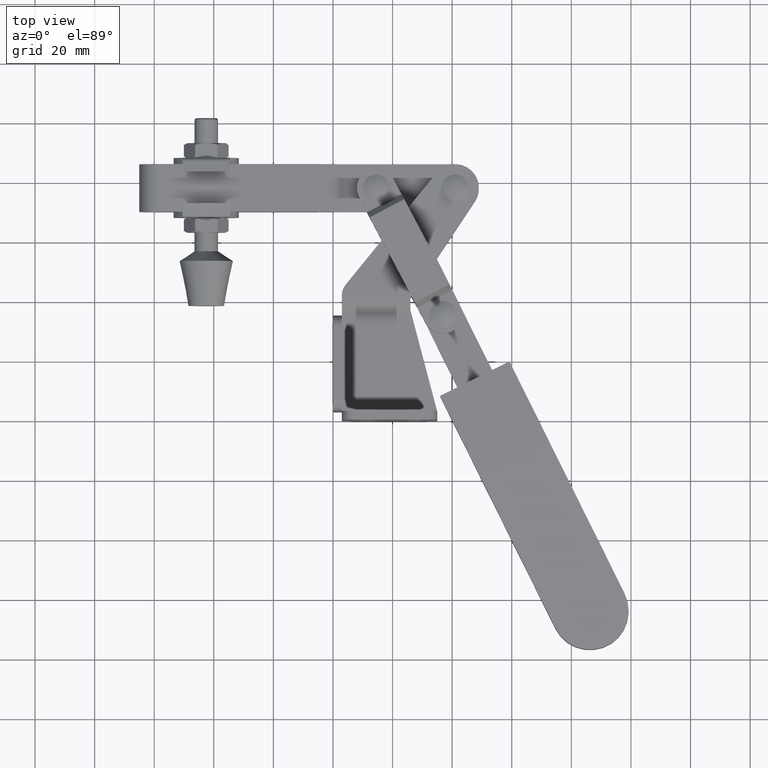
[diagram: clean part render]
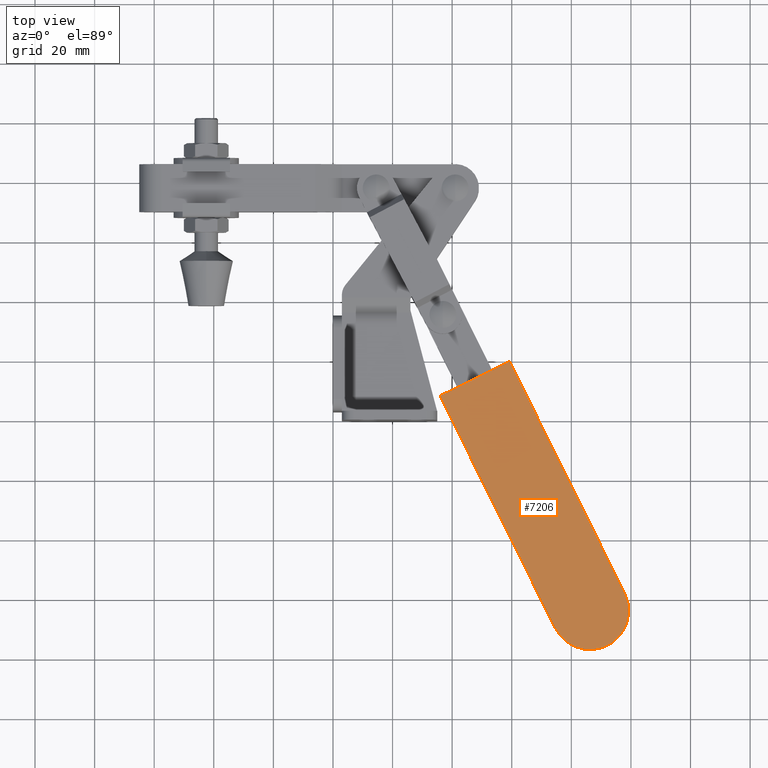
[diagram: same view with one face highlighted and labeled with its STEP entity id]
A machine part, top view. The second image highlights one B-rep face of the part: STEP entity #7206.
In plain terms, the highlighted planar face has unit normal (0, 0, -1).
Its self-contained STEP definition (entity closure, byte-faithful):
#92 = DIRECTION ( 'NONE',  ( -0.4443202440532905100, 0.8958680263992148100, 3.404298200502128600E-015 ) ) ;
#116 = ORIENTED_EDGE ( 'NONE', *, *, #8734, .T. ) ;
#380 = VECTOR ( 'NONE', #9391, 1000.000000000000100 ) ;
#395 = VECTOR ( 'NONE', #92, 1000.000000000000200 ) ;
#402 = CARTESIAN_POINT ( 'NONE',  ( 86.25971331329115800, -63.98598560364876400, 7.499999999999476000 ) ) ;
#549 = ORIENTED_EDGE ( 'NONE', *, *, #4997, .T. ) ;
#1536 = EDGE_CURVE ( 'NONE', #2818, #6876, #1951, .T. ) ;
#1912 = DIRECTION ( 'NONE',  ( -9.473132791285028900E-017, -3.846983200295715000E-015, 1.000000000000000000 ) ) ;
#1951 = LINE ( 'NONE', #2786, #395 ) ;
#1995 = DIRECTION ( 'NONE',  ( -0.4443202440532905100, 0.8958680263992148100, 3.404298200502128600E-015 ) ) ;
#2046 = CARTESIAN_POINT ( 'NONE',  ( 59.25013642384467300, 19.73069586577571900, 7.499999999999794800 ) ) ;
#2786 = CARTESIAN_POINT ( 'NONE',  ( 59.25013642384467300, 19.73069586577571900, 7.499999999999794800 ) ) ;
#2818 = VERTEX_POINT ( 'NONE', #3415 ) ;
#2839 = VERTEX_POINT ( 'NONE', #6263 ) ;
#3249 = CARTESIAN_POINT ( 'NONE',  ( 35.95756773746508400, 8.178369520390163000, 7.499999999999747800 ) ) ;
#3415 = CARTESIAN_POINT ( 'NONE',  ( 97.90599765648094900, -58.20982243095598800, 7.499999999999498200 ) ) ;
#4530 = CARTESIAN_POINT ( 'NONE',  ( 59.25013642384467300, 19.73069586577571900, 7.499999999999794800 ) ) ;
#4997 = EDGE_CURVE ( 'NONE', #6876, #6774, #7651, .T. ) ;
#5390 = CIRCLE ( 'NONE', #7203, 13.00000000000000400 ) ;
#5461 = FACE_OUTER_BOUND ( 'NONE', #7864, .T. ) ;
#5477 = PLANE ( 'NONE',  #7789 ) ;
#5650 = CARTESIAN_POINT ( 'NONE',  ( 86.25971331329115800, -63.98598560364876400, 7.499999999999476000 ) ) ;
#6236 = ORIENTED_EDGE ( 'NONE', *, *, #6749, .T. ) ;
#6263 = CARTESIAN_POINT ( 'NONE',  ( 74.61342897010136700, -69.76214877634154700, 7.499999999999452000 ) ) ;
#6412 = LINE ( 'NONE', #3249, #7646 ) ;
#6540 = CARTESIAN_POINT ( 'NONE',  ( 35.95756773746508400, 8.178369520390163000, 7.499999999999747800 ) ) ;
#6749 = EDGE_CURVE ( 'NONE', #6774, #2839, #6412, .T. ) ;
#6774 = VERTEX_POINT ( 'NONE', #6540 ) ;
#6876 = VERTEX_POINT ( 'NONE', #2046 ) ;
#7203 = AXIS2_PLACEMENT_3D ( 'NONE', #402, #1912, #8292 ) ;
#7206 = ADVANCED_FACE ( 'NONE', ( #5461 ), #5477, .F. ) ;
#7646 = VECTOR ( 'NONE', #8401, 1000.000000000000200 ) ;
#7651 = LINE ( 'NONE', #4530, #380 ) ;
#7789 = AXIS2_PLACEMENT_3D ( 'NONE', #5650, #8224, #1995 ) ;
#7864 = EDGE_LOOP ( 'NONE', ( #549, #6236, #116, #8192 ) ) ;
#8192 = ORIENTED_EDGE ( 'NONE', *, *, #1536, .T. ) ;
#8224 = DIRECTION ( 'NONE',  ( 9.473132791284958600E-017, 3.846983200295715000E-015, -1.000000000000000000 ) ) ;
#8292 = DIRECTION ( 'NONE',  ( -0.4443202440532904600, 0.8958680263992148100, 3.402726818262197600E-015 ) ) ;
#8401 = DIRECTION ( 'NONE',  ( 0.4443202440532905100, -0.8958680263992148100, -3.404298200502128600E-015 ) ) ;
#8734 = EDGE_CURVE ( 'NONE', #2839, #2818, #5390, .T. ) ;
#9391 = DIRECTION ( 'NONE',  ( -0.8958680263992148100, -0.4443202440532905100, -1.794159282199762000E-015 ) ) ;